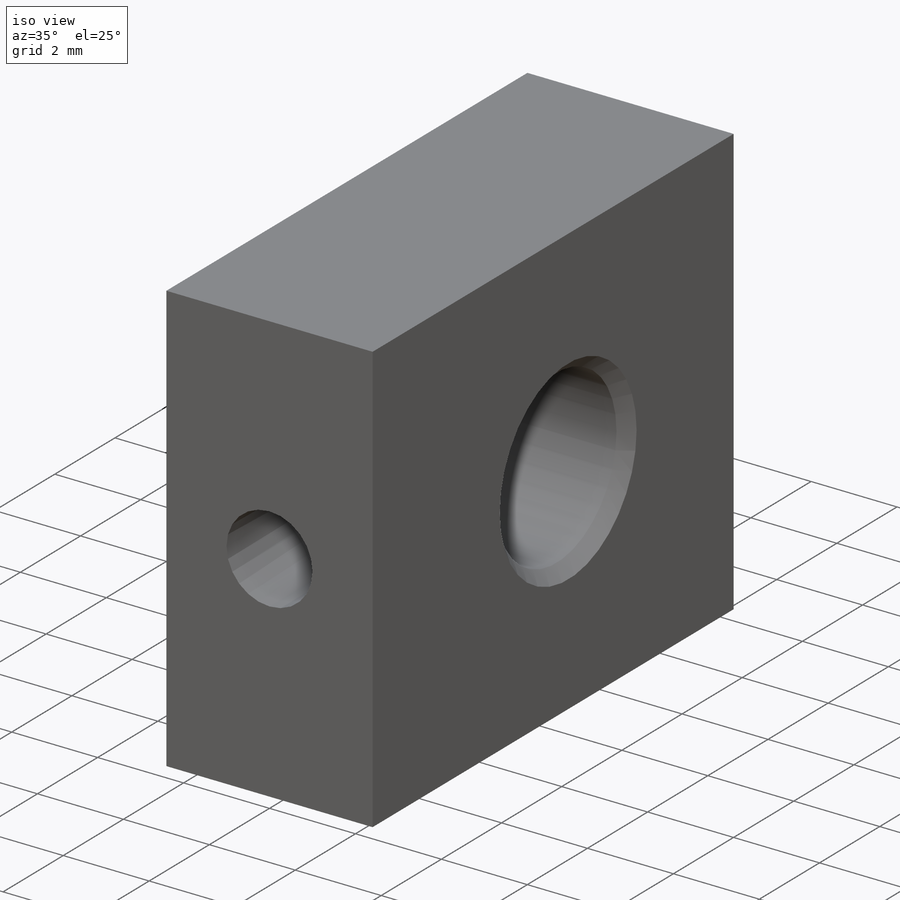
[diagram: iso view]
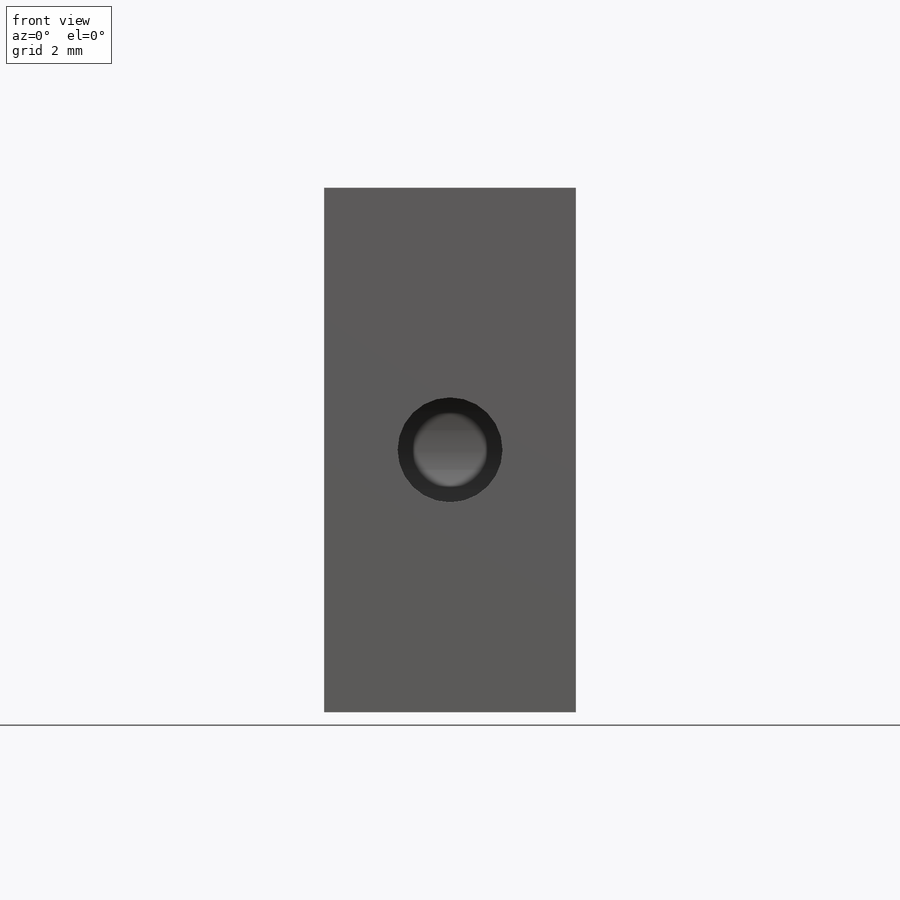
[diagram: front view]
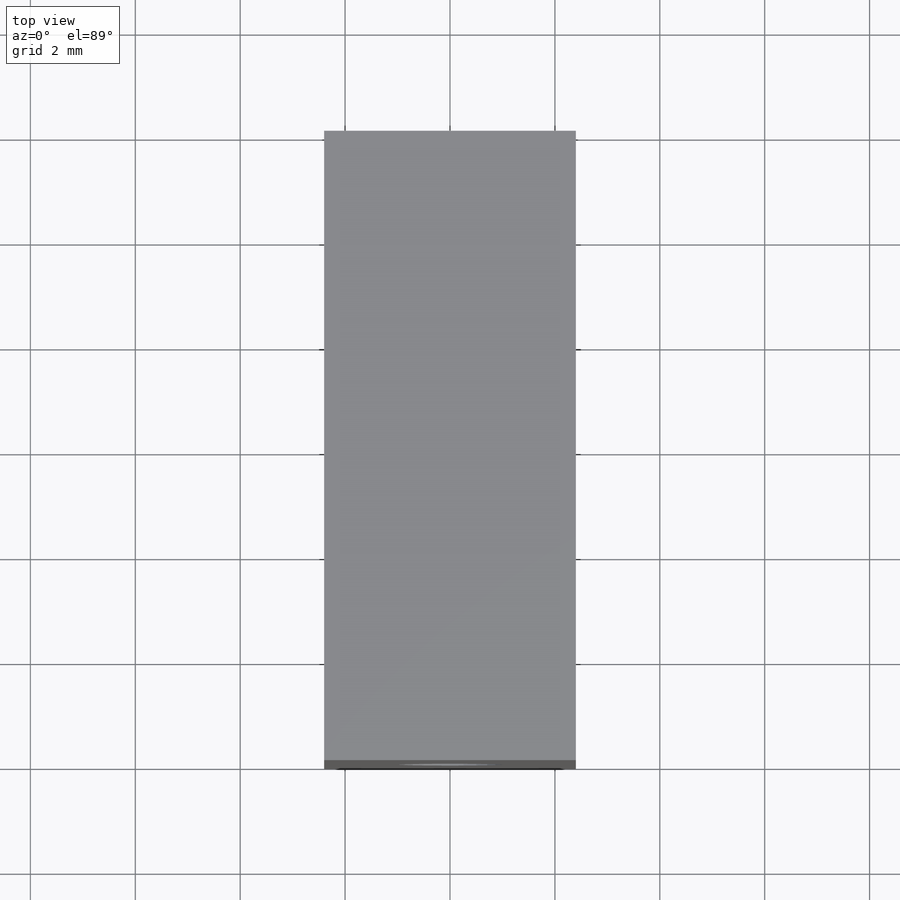
[diagram: top view]
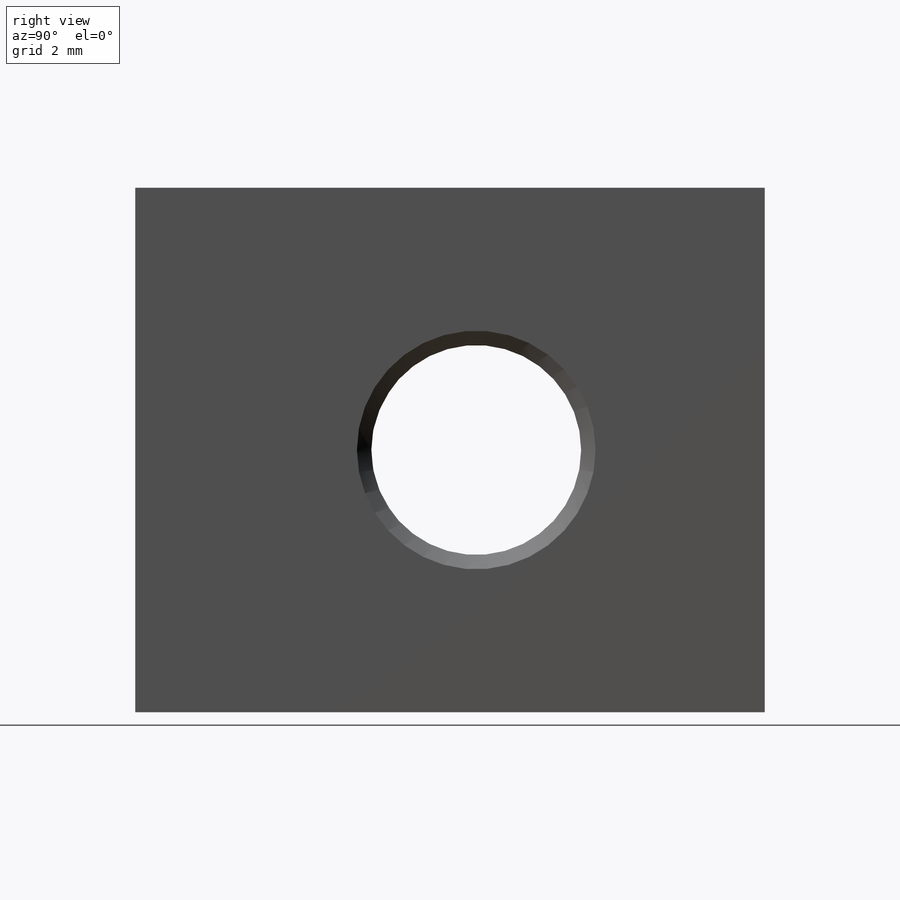
[diagram: right view]
SOLIDWORKS PART (.sldprt)
format: sldprt  version: not decoded by parser v0  size: 196,096 bytes
history: native  units: mm
features: sketch x4, material x1, extrude x1, hole x1, cut_extrude x1 (+14 scaffold rows collapsed)
feature tree (22):
  scaffold x14  (default folders/planes/origin — collapsed)
  material  "Материал <не указан>"
  sketch  "Эскиз1"  dims[D1=10.0mm D2=4.8mm]
  extrude  "Бобышка-Вытянуть1"  Depth=12mm
  hole  "Отверстие обработанное метчиком M41"  [1 undecoded]
  sketch  "Эскиз3"  dims[D1=5.5mm D2=5.0mm]
  sketch  "Эскиз2"  dims[hole-wizard template sketch: 46 standard entries collapsed; hole parameters kept: c15.Диаметр резьбы=4.0mm c15.Глубина проходного сверла=4.8mm c15.Диаметр передней зенковки=4.55mm c15.D4=~3.666174mm c15.Угол передней зенковки=90.0deg c15.Диаметр задней зенковки=4.55mm c15.D6=~9.919017mm c15.Угол задней зенковки=90.0deg]
  sketch  "Эскиз4"  dims[D1=2.0mm]
  cut_extrude  "Вырез-Вытянуть1"  [1 undecoded]
decode coverage: 5 of 7 modeling features carry decoded parameters
note: ~ marks probable driven/reference dimensions
note: 2 parameter values undecoded
note: suppression state not decoded; provenance and decode notes live in map.json
